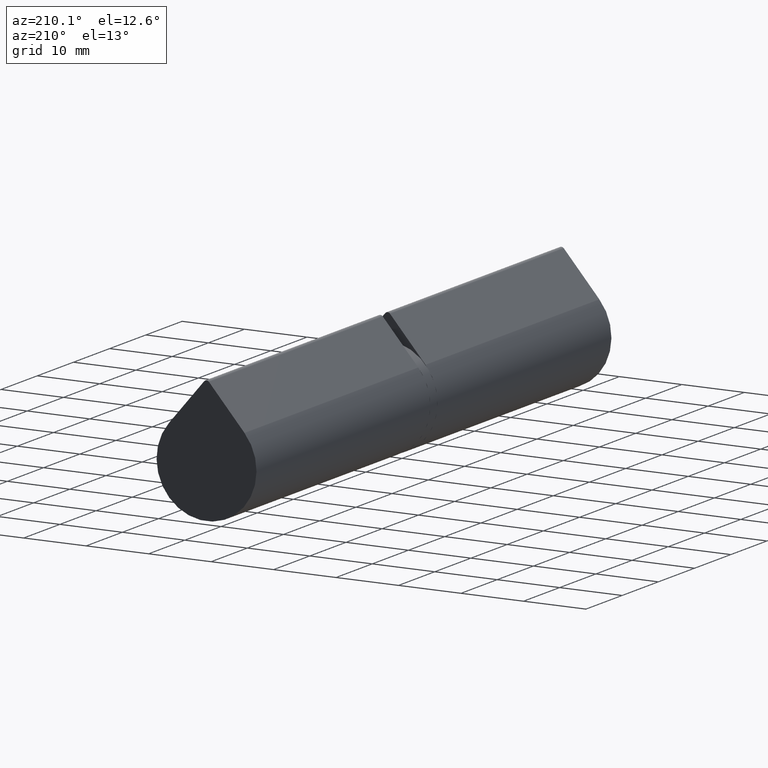
[diagram: clean part render]
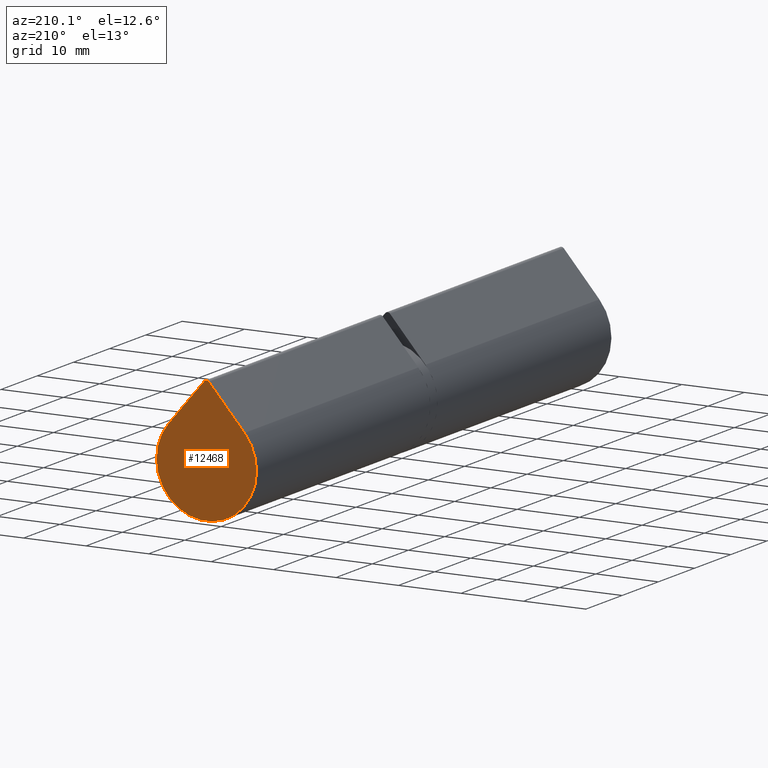
[diagram: same view with one face highlighted and labeled with its STEP entity id]
A machine part, auxiliary view. The second image highlights one B-rep face of the part: STEP entity #12468.
In plain terms, the highlighted planar face has unit normal (0, -1, 0).
Its self-contained STEP definition (entity closure, byte-faithful):
#149 = EDGE_CURVE ( 'NONE', #9726, #1401, #8697, .T. ) ;
#803 = LINE ( 'NONE', #10512, #13186 ) ;
#1235 = VERTEX_POINT ( 'NONE', #4015 ) ;
#1401 = VERTEX_POINT ( 'NONE', #11069 ) ;
#1493 = AXIS2_PLACEMENT_3D ( 'NONE', #10994, #11439, #2089 ) ;
#1932 = FACE_OUTER_BOUND ( 'NONE', #9429, .T. ) ;
#2027 = CARTESIAN_POINT ( 'NONE',  ( -6.064555051882675407, -24.00000000000000711, 5.217391304347824388 ) ) ;
#2089 = DIRECTION ( 'NONE',  ( 0.000000000000000000, 0.000000000000000000, 1.000000000000000000 ) ) ;
#2230 = CARTESIAN_POINT ( 'NONE',  ( -0.3790346907426674350, -24.00000000000000711, 11.82608695652173658 ) ) ;
#2458 = CARTESIAN_POINT ( 'NONE',  ( 0.3790346907426672685, -24.00000000000000711, 11.82608695652173658 ) ) ;
#2890 = ORIENTED_EDGE ( 'NONE', *, *, #12401, .F. ) ;
#2908 = ORIENTED_EDGE ( 'NONE', *, *, #149, .F. ) ;
#3590 = ORIENTED_EDGE ( 'NONE', *, *, #6413, .F. ) ;
#4015 = CARTESIAN_POINT ( 'NONE',  ( 6.064555051882675407, -24.00000000000000711, 5.217391304347824388 ) ) ;
#5513 = AXIS2_PLACEMENT_3D ( 'NONE', #8263, #12331, #12420 ) ;
#6394 = DIRECTION ( 'NONE',  ( 0.000000000000000000, 1.000000000000000000, 0.000000000000000000 ) ) ;
#6413 = EDGE_CURVE ( 'NONE', #9375, #9726, #803, .T. ) ;
#6437 = CARTESIAN_POINT ( 'NONE',  ( 0.000000000000000000, -24.00000000000000711, 0.000000000000000000 ) ) ;
#7292 = ORIENTED_EDGE ( 'NONE', *, *, #11180, .F. ) ;
#7495 = AXIS2_PLACEMENT_3D ( 'NONE', #6437, #6394, #11664 ) ;
#7687 = DIRECTION ( 'NONE',  ( 0.6521739130434782705, -0.000000000000000000, -0.7580693814853345369 ) ) ;
#8263 = CARTESIAN_POINT ( 'NONE',  ( 0.000000000000000000, -24.00000000000000711, 11.50000000000000000 ) ) ;
#8697 = CIRCLE ( 'NONE', #5513, 0.4999999999999987232 ) ;
#8743 = VECTOR ( 'NONE', #7687, 1000.000000000000000 ) ;
#9375 = VERTEX_POINT ( 'NONE', #2027 ) ;
#9429 = EDGE_LOOP ( 'NONE', ( #2890, #7292, #2908, #3590 ) ) ;
#9726 = VERTEX_POINT ( 'NONE', #2230 ) ;
#10512 = CARTESIAN_POINT ( 'NONE',  ( -6.064555051882675407, -24.00000000000000711, 5.217391304347824388 ) ) ;
#10583 = PLANE ( 'NONE',  #7495 ) ;
#10727 = CIRCLE ( 'NONE', #1493, 7.999999999999998224 ) ;
#10994 = CARTESIAN_POINT ( 'NONE',  ( 0.000000000000000000, -24.00000000000000711, 0.000000000000000000 ) ) ;
#11069 = CARTESIAN_POINT ( 'NONE',  ( 0.3790346907426672685, -24.00000000000000711, 11.82608695652173658 ) ) ;
#11180 = EDGE_CURVE ( 'NONE', #1401, #1235, #11490, .T. ) ;
#11439 = DIRECTION ( 'NONE',  ( 0.000000000000000000, 1.000000000000000000, 0.000000000000000000 ) ) ;
#11490 = LINE ( 'NONE', #2458, #8743 ) ;
#11664 = DIRECTION ( 'NONE',  ( 0.000000000000000000, 0.000000000000000000, 1.000000000000000000 ) ) ;
#12331 = DIRECTION ( 'NONE',  ( 0.000000000000000000, 1.000000000000000000, 0.000000000000000000 ) ) ;
#12401 = EDGE_CURVE ( 'NONE', #1235, #9375, #10727, .T. ) ;
#12420 = DIRECTION ( 'NONE',  ( 0.000000000000000000, 0.000000000000000000, 1.000000000000000000 ) ) ;
#12468 = ADVANCED_FACE ( 'NONE', ( #1932 ), #10583, .F. ) ;
#12506 = DIRECTION ( 'NONE',  ( 0.6521739130434782705, 0.000000000000000000, 0.7580693814853345369 ) ) ;
#13186 = VECTOR ( 'NONE', #12506, 1000.000000000000000 ) ;